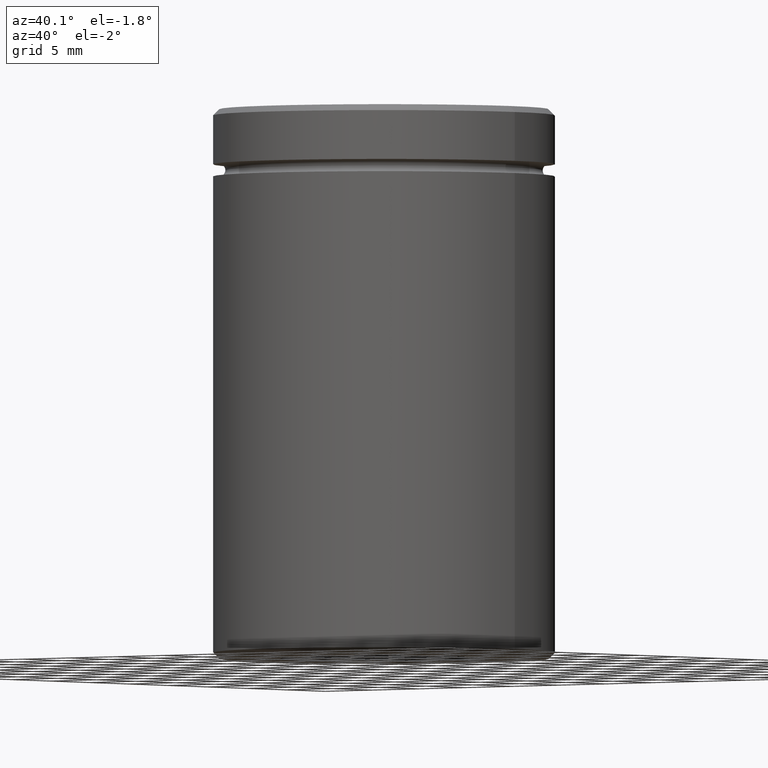
[diagram: clean part render]
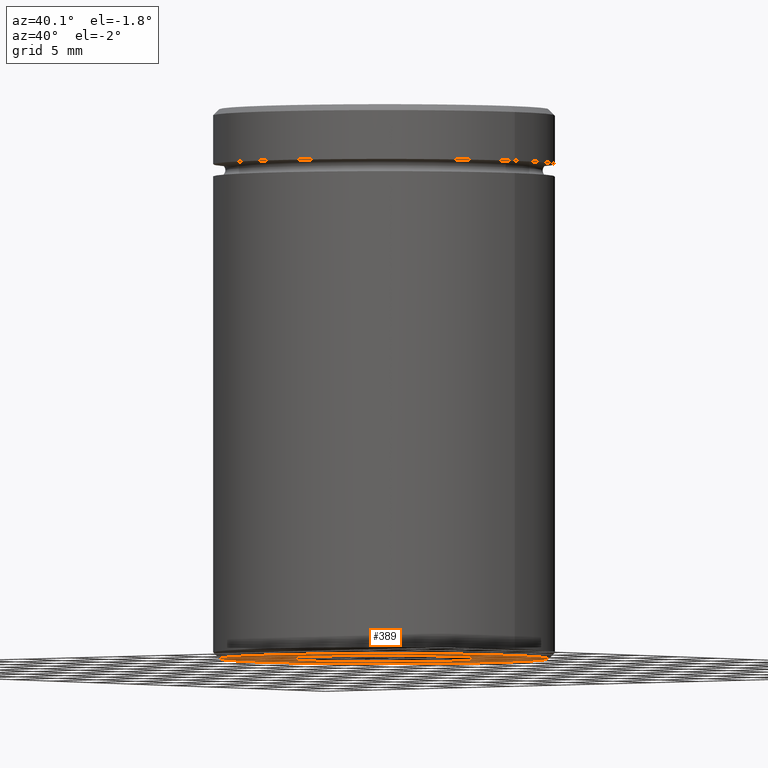
[diagram: same view with one face highlighted and labeled with its STEP entity id]
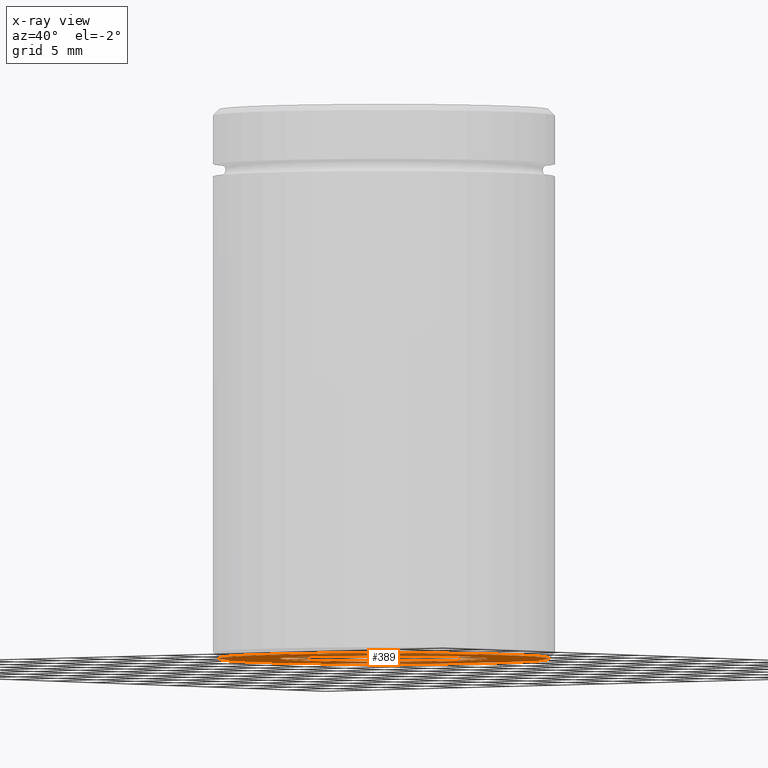
[diagram: x-ray of the same camera — body ghosted, the highlighted face saturated]
A machine part, auxiliary view. The second image highlights one B-rep face of the part: STEP entity #389.
The next image is the same camera in x-ray: the body ghosted, the highlighted face saturated — about 0% of this face is hidden behind the body in this view.
In plain terms, the highlighted planar face has unit normal (0, 0, -1).
Its self-contained STEP definition (entity closure, byte-faithful):
#10 = CIRCLE ( 'NONE', #459, 8.500000000000000000 ) ;
#26 = VERTEX_POINT ( 'NONE', #381 ) ;
#30 = DIRECTION ( 'NONE',  ( 0.000000000000000000, 0.000000000000000000, -1.000000000000000000 ) ) ;
#39 = CARTESIAN_POINT ( 'NONE',  ( 0.000000000000000000, 0.000000000000000000, -45.00000000000000000 ) ) ;
#54 = CIRCLE ( 'NONE', #319, 13.49999999999999467 ) ;
#59 = DIRECTION ( 'NONE',  ( -1.000000000000000000, 0.000000000000000000, 0.000000000000000000 ) ) ;
#66 = ORIENTED_EDGE ( 'NONE', *, *, #207, .F. ) ;
#86 = EDGE_LOOP ( 'NONE', ( #66, #263 ) ) ;
#96 = CARTESIAN_POINT ( 'NONE',  ( 13.49999999999999467, 0.000000000000000000, -45.00000000000000000 ) ) ;
#131 = CARTESIAN_POINT ( 'NONE',  ( 0.000000000000000000, 0.000000000000000000, -45.00000000000000000 ) ) ;
#138 = EDGE_CURVE ( 'NONE', #552, #26, #436, .T. ) ;
#139 = CARTESIAN_POINT ( 'NONE',  ( 0.000000000000000000, 0.000000000000000000, -45.00000000000000000 ) ) ;
#173 = CARTESIAN_POINT ( 'NONE',  ( 0.000000000000000000, 14.00000000000000000, -45.00000000000000000 ) ) ;
#178 = FACE_OUTER_BOUND ( 'NONE', #314, .T. ) ;
#182 = DIRECTION ( 'NONE',  ( -1.000000000000000000, 0.000000000000000000, 0.000000000000000000 ) ) ;
#197 = AXIS2_PLACEMENT_3D ( 'NONE', #39, #224, #182 ) ;
#207 = EDGE_CURVE ( 'NONE', #439, #361, #10, .T. ) ;
#224 = DIRECTION ( 'NONE',  ( 0.000000000000000000, 0.000000000000000000, -1.000000000000000000 ) ) ;
#232 = CIRCLE ( 'NONE', #460, 8.500000000000000000 ) ;
#236 = ORIENTED_EDGE ( 'NONE', *, *, #418, .T. ) ;
#245 = CARTESIAN_POINT ( 'NONE',  ( 0.000000000000000000, 0.000000000000000000, -45.00000000000000000 ) ) ;
#260 = CARTESIAN_POINT ( 'NONE',  ( -8.500000000000000000, 0.000000000000000000, -45.00000000000000000 ) ) ;
#263 = ORIENTED_EDGE ( 'NONE', *, *, #328, .F. ) ;
#296 = DIRECTION ( 'NONE',  ( 0.000000000000000000, 0.000000000000000000, -1.000000000000000000 ) ) ;
#298 = DIRECTION ( 'NONE',  ( -1.000000000000000000, 0.000000000000000000, -0.000000000000000000 ) ) ;
#304 = DIRECTION ( 'NONE',  ( -1.000000000000000000, 0.000000000000000000, 0.000000000000000000 ) ) ;
#314 = EDGE_LOOP ( 'NONE', ( #482, #236 ) ) ;
#319 = AXIS2_PLACEMENT_3D ( 'NONE', #131, #375, #304 ) ;
#328 = EDGE_CURVE ( 'NONE', #361, #439, #232, .T. ) ;
#338 = DIRECTION ( 'NONE',  ( -1.000000000000000000, 0.000000000000000000, 0.000000000000000000 ) ) ;
#340 = AXIS2_PLACEMENT_3D ( 'NONE', #173, #296, #298 ) ;
#343 = FACE_BOUND ( 'NONE', #86, .T. ) ;
#361 = VERTEX_POINT ( 'NONE', #380 ) ;
#375 = DIRECTION ( 'NONE',  ( 0.000000000000000000, 0.000000000000000000, -1.000000000000000000 ) ) ;
#380 = CARTESIAN_POINT ( 'NONE',  ( 8.500000000000000000, 1.040949779275249943E-15, -45.00000000000000000 ) ) ;
#381 = CARTESIAN_POINT ( 'NONE',  ( -13.49999999999999467, 1.683889348827610456E-15, -45.00000000000000000 ) ) ;
#389 = ADVANCED_FACE ( 'NONE', ( #178, #343 ), #522, .T. ) ;
#418 = EDGE_CURVE ( 'NONE', #26, #552, #54, .T. ) ;
#436 = CIRCLE ( 'NONE', #197, 13.49999999999999467 ) ;
#439 = VERTEX_POINT ( 'NONE', #260 ) ;
#453 = DIRECTION ( 'NONE',  ( 0.000000000000000000, 0.000000000000000000, -1.000000000000000000 ) ) ;
#459 = AXIS2_PLACEMENT_3D ( 'NONE', #139, #453, #59 ) ;
#460 = AXIS2_PLACEMENT_3D ( 'NONE', #245, #30, #338 ) ;
#482 = ORIENTED_EDGE ( 'NONE', *, *, #138, .T. ) ;
#522 = PLANE ( 'NONE',  #340 ) ;
#552 = VERTEX_POINT ( 'NONE', #96 ) ;